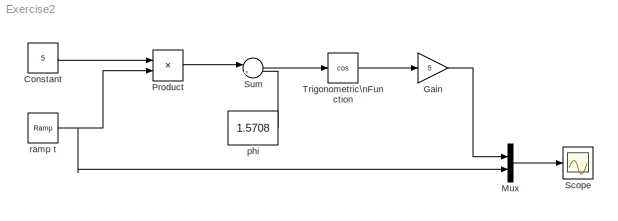
MODEL Exercise2
KIND model
BLOCK [Constant] Constant
  Value = 5
BLOCK [Gain] Gain
  Gain = 5
  OutDataTypeMode = Inherit via internal rule
  ParameterDataTypeMode = Inherit via internal rule
  SaturateOnIntegerOverflow = off
BLOCK [Mux] Mux
  DisplayOption = bar
  Inputs = 2
  Ports = [2, 1]
BLOCK [Product] Product
  InputSameDT = off
  OutDataTypeMode = Inherit via internal rule
  Ports = [2, 1]
  SaturateOnIntegerOverflow = off
BLOCK [Scope] Scope
  DataFormat = StructureWithTime
  NumInputPorts = 1
  Ports = [1]
BLOCK [Sum] Sum
  IconShape = round
  InputSameDT = off
  Inputs = |++
  OutDataTypeMode = Inherit via internal rule
  Ports = [2, 1]
  SaturateOnIntegerOverflow = off
BLOCK [Trigonometry] Trigonometric\nFunction
  Operator = cos
  Ports = [1, 1]
BLOCK [Constant] phi
  Value = 1.5708
BLOCK [Reference] ramp t  REF=simulink/Sources/Ramp
  Ports = [0, 1]
  ShowPortLabels = on
  SourceBlock = simulink/Sources/Ramp
  SourceType = Ramp
  VectorParams1D = on
  X0 = 0
  slope = 1
  start = 0
LINE Constant:1 -> Product:1
LINE Gain:1 -> Mux:1
LINE Mux:1 -> Scope:1
LINE Product:1 -> Sum:1
LINE Sum:1 -> Trigonometric\nFunction:1
LINE Trigonometric\nFunction:1 -> Gain:1
LINE phi:1 -> Sum:2
NET ramp t:1 -> Mux:2, Product:2
note: NET lines group one-source signal fan-out (src -> all destinations, sorted); 1:1 wires keep LINE
